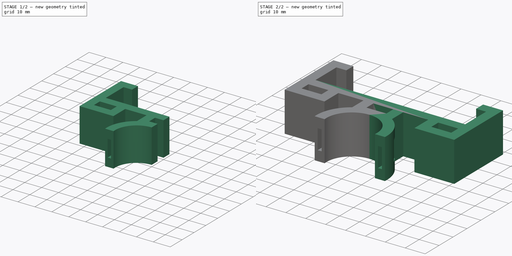
[diagram: build sequence overview — one tinted view per stage of 2, left to right]
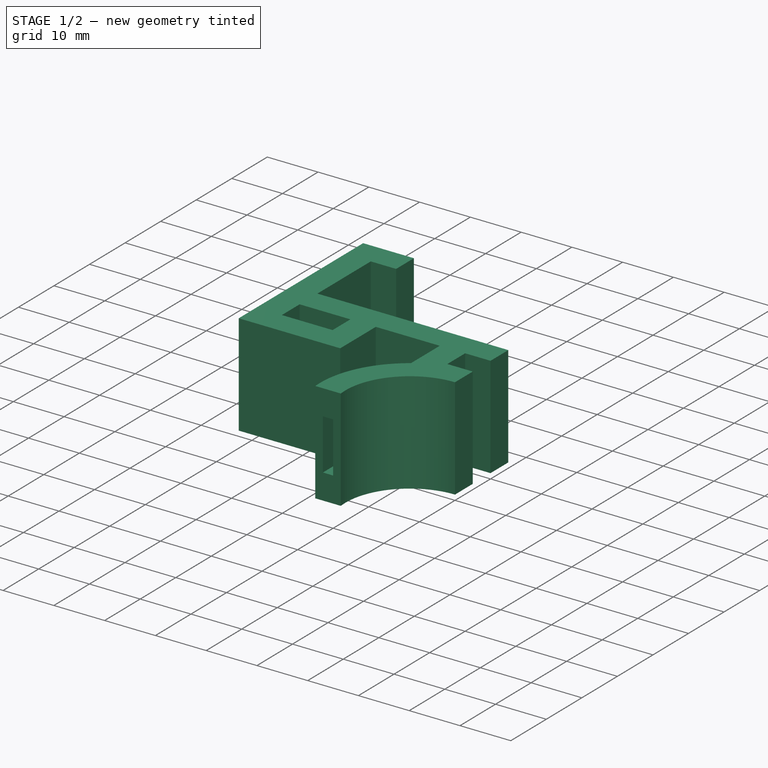
[diagram: stage 1 of 2 — iso view after this stage's code; geometry added in this stage tinted green]
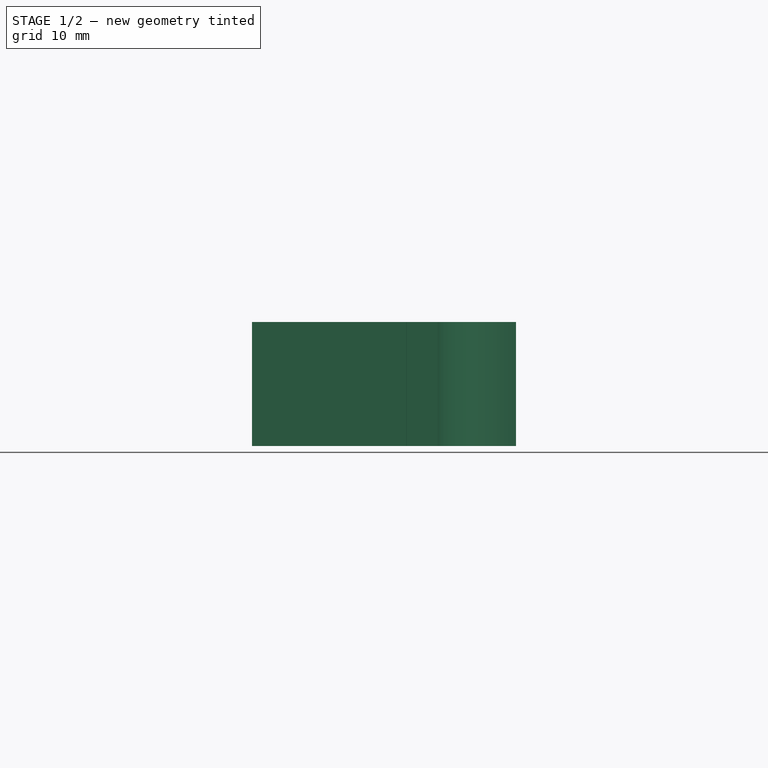
[diagram: stage 1 of 2 — front view after this stage's code; geometry added in this stage tinted green]
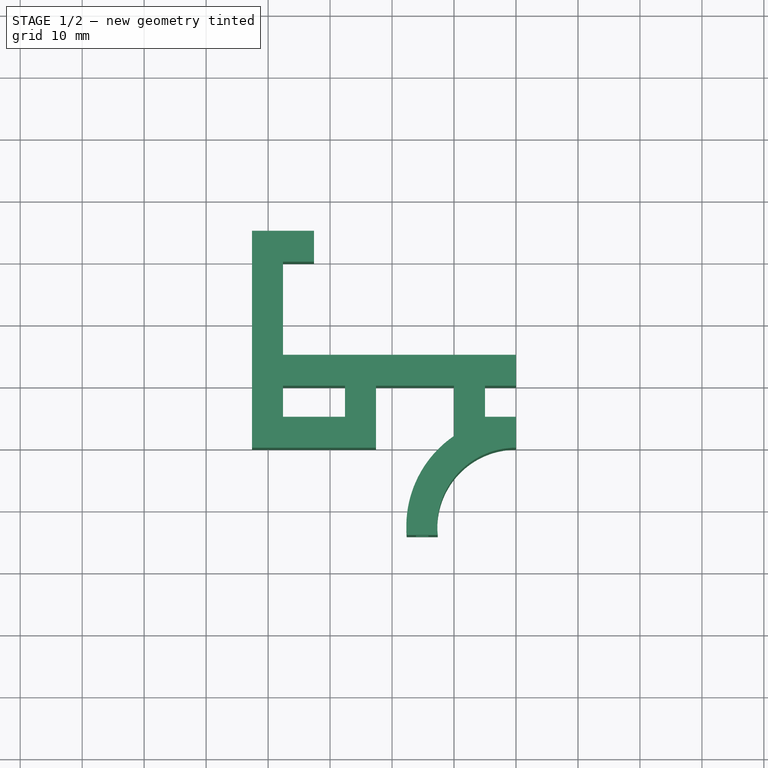
[diagram: stage 1 of 2 — top view after this stage's code; geometry added in this stage tinted green]
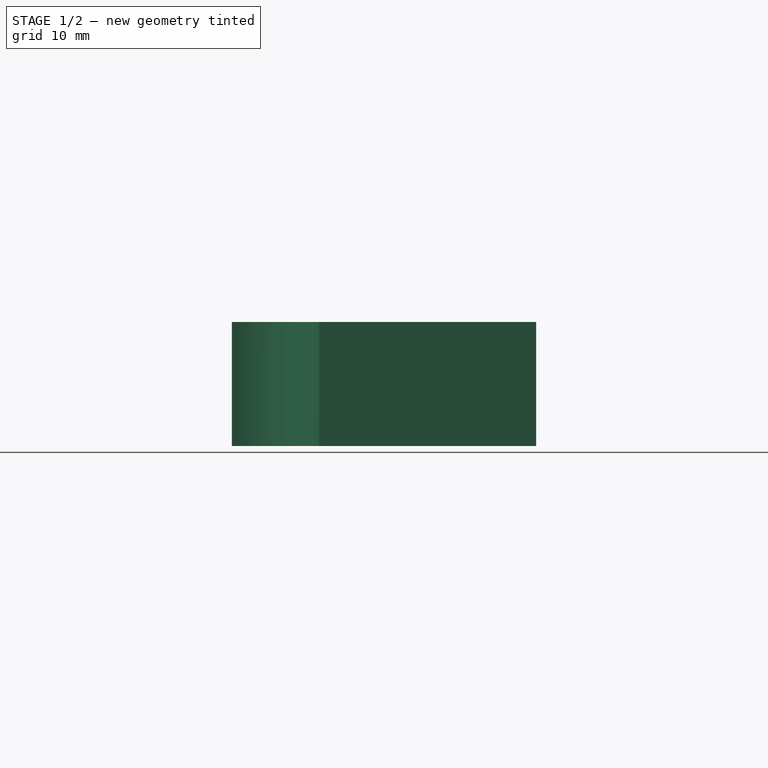
[diagram: stage 1 of 2 — right view after this stage's code; geometry added in this stage tinted green]
FCSTD DOCUMENT  (FreeCAD 0.14R3700 (Git))
Label: bici
License: CC-BY 3.0
LicenseURL: http://creativecommons.org/licenses/by/3.0/
objects: Sketcher::SketchObject×2, PartDesign::Pad×1, PartDesign::Pocket×1, Part::Mirroring×1, Part::Fuse×1
note: 8 computed .brp shape members not serialized (recipe doc carries the construction recipe); baked Part::Feature solids carry a one-line shape summary decoded from their .brp

FEATURE [Sketcher::SketchObject] Sketch
  sketch-geometry (22):
    g0: LineSegment StartX=-37.6 StartY=20 StartZ=0 EndX=-32.6 EndY=20 EndZ=0
    g1: LineSegment StartX=-32.6 StartY=20 StartZ=0 EndX=-32.6 EndY=25 EndZ=0
    g2: LineSegment StartX=-32.6 StartY=25 StartZ=0 EndX=-42.6 EndY=25 EndZ=0
    g3: LineSegment StartX=-42.6 StartY=25 StartZ=0 EndX=-42.6 EndY=-10 EndZ=0
    g4: LineSegment StartX=-42.6 StartY=-10 StartZ=0 EndX=-22.6 EndY=-10 EndZ=0
    g5: LineSegment StartX=-22.6 StartY=-10 StartZ=0 EndX=-22.6 EndY=0 EndZ=0
    g6: LineSegment StartX=-22.6 StartY=0 StartZ=0 EndX=-10 EndY=0 EndZ=0
    g7: LineSegment StartX=-10 StartY=0 StartZ=0 EndX=-10 EndY=-8.09555 EndZ=0
    g8: LineSegment StartX=0 StartY=-5 StartZ=0 EndX=-5 EndY=-5 EndZ=0
    g9: LineSegment StartX=-5 StartY=-5 StartZ=0 EndX=-5 EndY=0 EndZ=0
    g10: LineSegment StartX=-5 StartY=0 StartZ=0 EndX=0 EndY=0 EndZ=0
    g11: LineSegment StartX=0 StartY=0 StartZ=0 EndX=0 EndY=5 EndZ=0
    g12: LineSegment StartX=0 StartY=5 StartZ=0 EndX=-37.6 EndY=5 EndZ=0
    g13: LineSegment StartX=-37.6 StartY=5 StartZ=0 EndX=-37.6 EndY=20 EndZ=0
    g14: LineSegment StartX=-37.6 StartY=0 StartZ=0 EndX=-27.6 EndY=0 EndZ=0
    g15: LineSegment StartX=-27.6 StartY=0 StartZ=0 EndX=-27.6 EndY=-5 EndZ=0
    g16: LineSegment StartX=-27.6 StartY=-5 StartZ=0 EndX=-37.6 EndY=-5 EndZ=0
    g17: LineSegment StartX=-37.6 StartY=-5 StartZ=0 EndX=-37.6 EndY=0 EndZ=0
    g18: ArcOfCircle CenterX=0 CenterY=-22.7 CenterZ=0 NormalX=0 NormalY=0 NormalZ=1 Radius=17.7 StartAngle=2.1712 EndAngle=3.22049
    g19: ArcOfCircle CenterX=0 CenterY=-22.7 CenterZ=0 NormalX=0 NormalY=0 NormalZ=1 Radius=12.7 StartAngle=1.5708 EndAngle=3.25166
    g20: LineSegment StartX=0 StartY=-10 StartZ=0 EndX=0 EndY=-5 EndZ=0
    g21: LineSegment StartX=-17.6449 StartY=-24.095 StartZ=0 EndX=-12.6231 EndY=-24.095 EndZ=0
  constraints (66):
    c: Horizontal(g0)
    c: Coincident(g0,g1)
    c: Coincident(g1,g2)
    c: Horizontal(g2)
    c: Coincident(g2,g3)
    c: Vertical(g3)
    c: Coincident(g3,g4)
    c: Horizontal(g4)
    c: Coincident(g4,g5)
    c: Vertical(g5)
    c: Coincident(g5,g6)
    c: Horizontal(g6)
    c: Coincident(g6,g7)
    c: Horizontal(g8)
    c: Coincident(g8,g9)
    c: Vertical(g9)
    c: Coincident(g9,g10)
    c: Coincident(g10,g-1)
    c: Horizontal(g10)
    c: Coincident(g10,g11)
    c: Vertical(g11)
    c: Coincident(g11,g12)
    c: Horizontal(g12)
    c: Coincident(g12,g13)
    c: Coincident(g13,g0)
    c: Vertical(g13)
    c: Coincident(g14,g15)
    c: Coincident(g15,g16)
    c: Coincident(g16,g17)
    c: Coincident(g17,g14)
    c: Horizontal(g14)
    c: Horizontal(g16)
    c: Vertical(g15)
    c: Vertical(g17)
    c: Vertical(g7)
    c: Vertical(g1)
    c: DistanceX(g12,g11) = 37.6
    c: DistanceX(g0,g0) = -5
    c: DistanceY(g0,g1) = 5
    c: DistanceY(g0,g12) = -15
    c: DistanceX(g2,g0) = 5
    c: PointOnObject(g14,g13)
    c: DistanceY(g3,g16) = 5
    c: DistanceY(g16,g14) = 5
    c: DistanceY(g14,g12) = 5
    c: DistanceX(g15,g4) = 5
    c: DistanceX(g7,g8) = 5
    c: DistanceX(g16,g15) = 10
    c: PointOnObject(g9,g14)
    c: PointOnObject(g8,g16)
    c: DistanceX(g8,g8) = 5
    c: Coincident(g18,g7)
    c: Radius(g18) = 17.7
    c: PointOnObject(g8,g-2)
    c: Radius(g19) = 12.7
    c: PointOnObject(g19,g-2)
    c: Coincident(g20,g19)
    c: Vertical(g20)
    c: DistanceY(g19,g8) = 5
    c: Coincident(g21,g18)
    c: Coincident(g21,g19)
    c: Horizontal(g21)
    c: Coincident(g18,g19)
    c: PointOnObject(g18,g-2)
    c: DistanceX(g18,g19) = 5.02179
    c: PointOnObject(g5,g14)
FEATURE [PartDesign::Pad] Pad
  Length = 20
  Length2 = 100
  Sketch = -> Sketch
  Type = 0
FEATURE [Sketcher::SketchObject] Sketch001
  ExternalGeometry = -> [Pad]
  Placement = pos=(0,-24.095,0) rot=(1,0,0;1.5708rad)
  Support = -> Pad [Face17]
  sketch-geometry (4):
    g0: LineSegment StartX=-16.1449 StartY=5 StartZ=0 EndX=-14.1449 EndY=5 EndZ=0
    g1: LineSegment StartX=-14.1449 StartY=5 StartZ=0 EndX=-14.1449 EndY=15 EndZ=0
    g2: LineSegment StartX=-14.1449 StartY=15 StartZ=0 EndX=-16.1449 EndY=15 EndZ=0
    g3: LineSegment StartX=-16.1449 StartY=15 StartZ=0 EndX=-16.1449 EndY=5 EndZ=0
  constraints (12):
    c: Coincident(g0,g1)
    c: Coincident(g1,g2)
    c: Coincident(g2,g3)
    c: Coincident(g0,g3)
    c: Horizontal(g2)
    c: Vertical(g1)
    c: Vertical(g3)
    c: Horizontal(g0)
    c: DistanceX(g2,g-3) = -1.5
    c: DistanceY(g1,g-5) = 5
    c: DistanceY(g0,g-6) = -5
    c: DistanceX(g1,g2) = -2
FEATURE [PartDesign::Pocket] Pocket
  Length = 5
  Sketch = -> Sketch001
  Type = 2
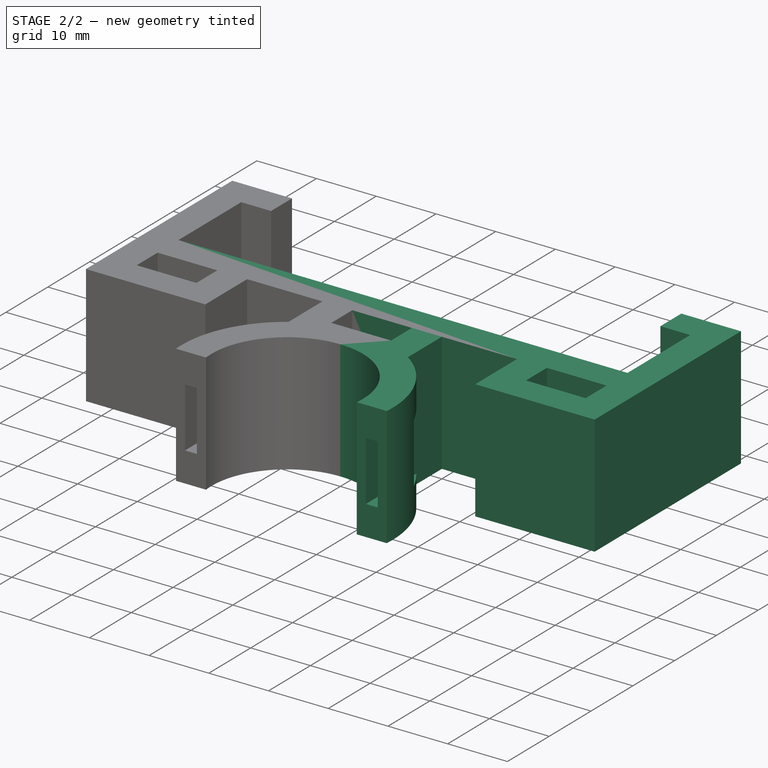
[diagram: stage 2 of 2 — iso view after this stage's code; geometry added in this stage tinted green]
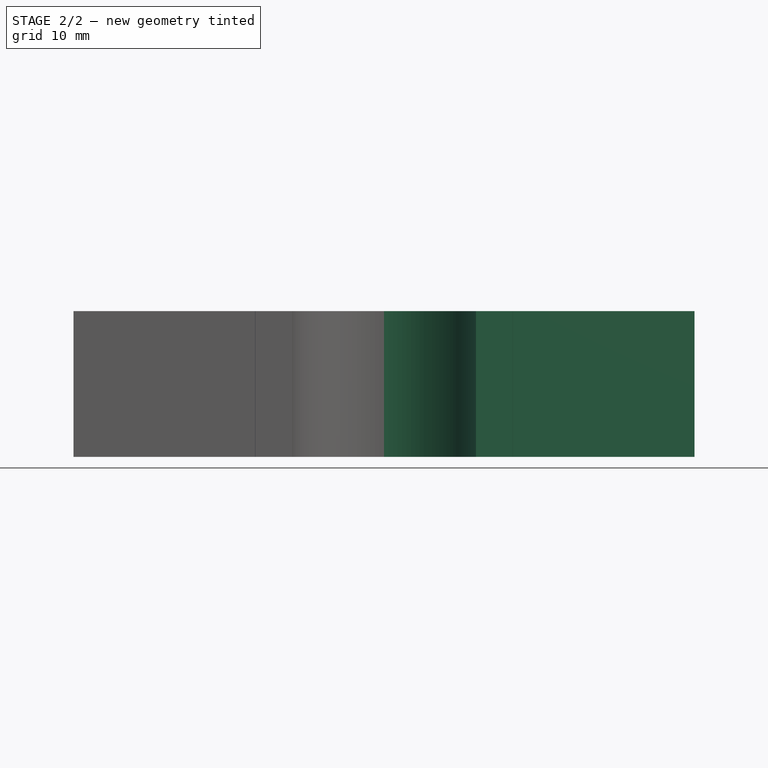
[diagram: stage 2 of 2 — front view after this stage's code; geometry added in this stage tinted green]
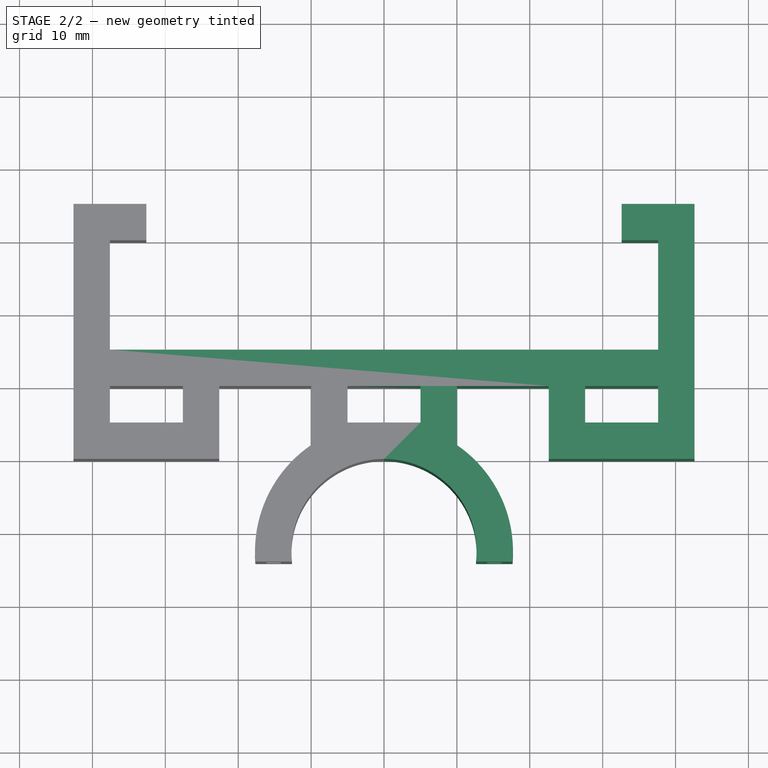
[diagram: stage 2 of 2 — top view after this stage's code; geometry added in this stage tinted green]
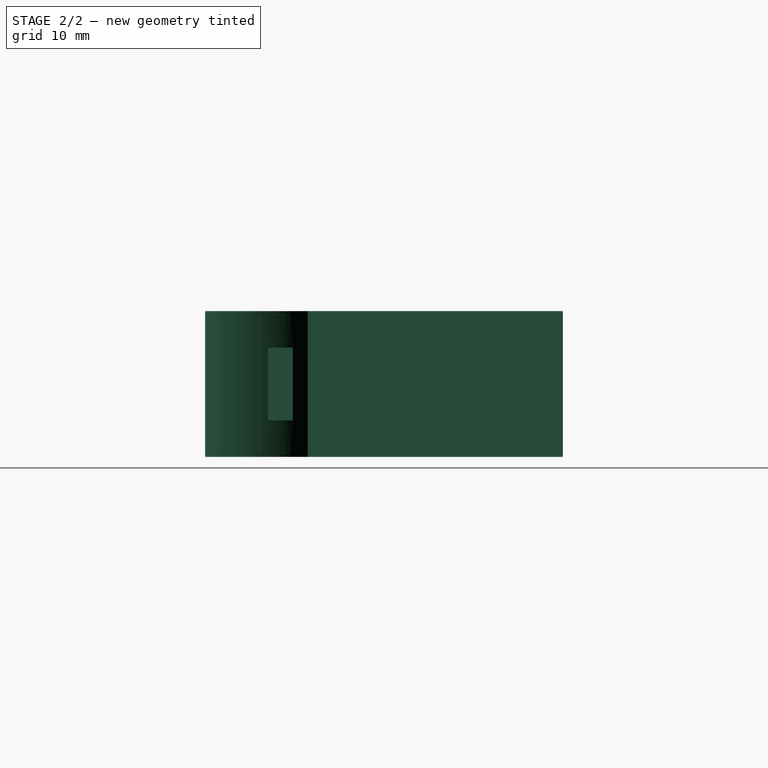
[diagram: stage 2 of 2 — right view after this stage's code; geometry added in this stage tinted green]
FEATURE [Part::Mirroring] Part__Mirroring  label="Pocket (Mirror #1)"
  Base = (0,0,0)
  Normal = (1,0,0)
  Source = -> Pocket
FEATURE [Part::Fuse] Fusion
  Base = -> Pocket
  Tool = -> Part__Mirroring
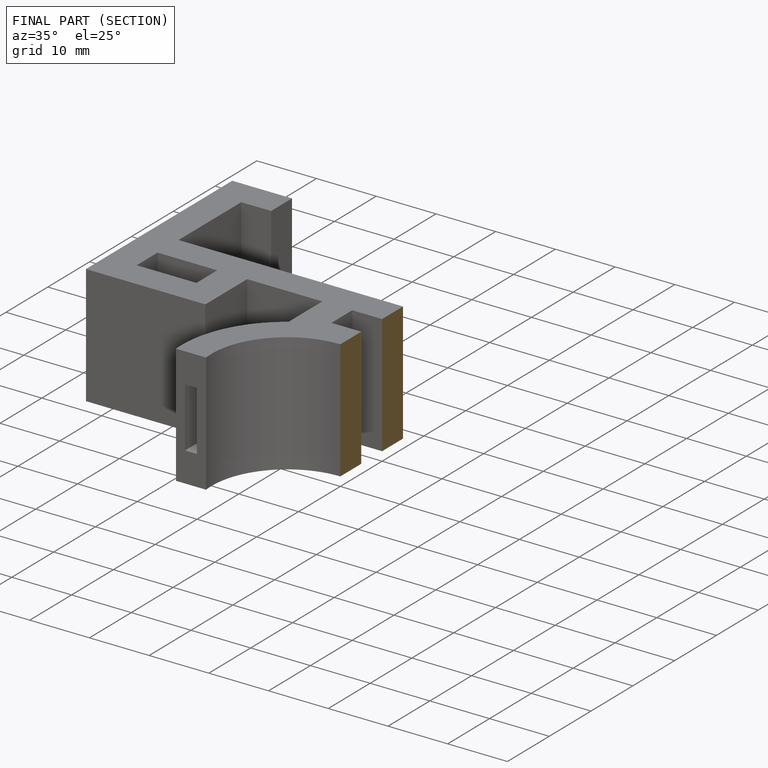
[diagram: finished part — half-section view (interior)]
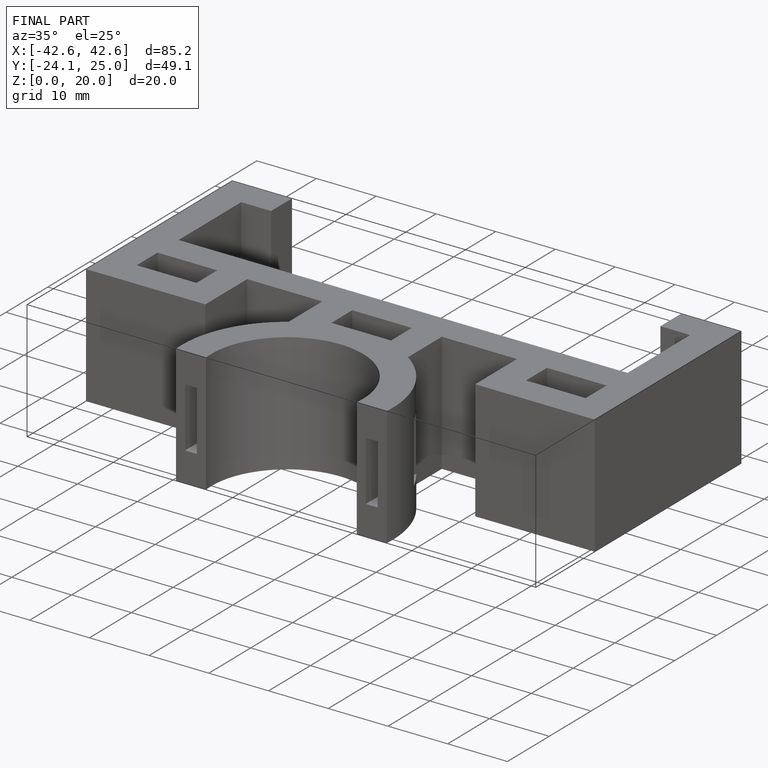
[diagram: finished part — iso view with bounding-box wireframe]
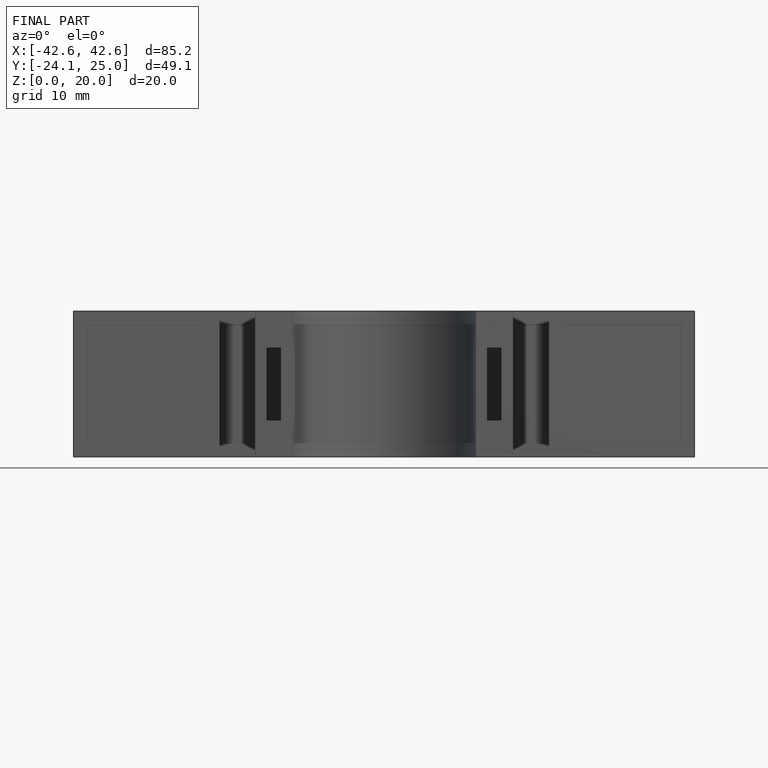
[diagram: finished part — front view with bounding-box wireframe]
